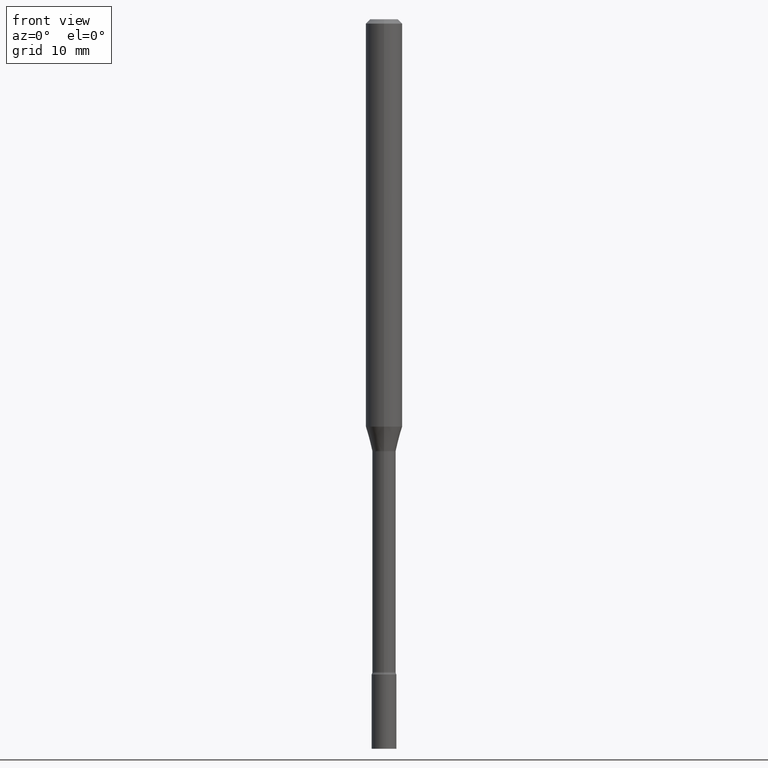
[diagram: clean part render]
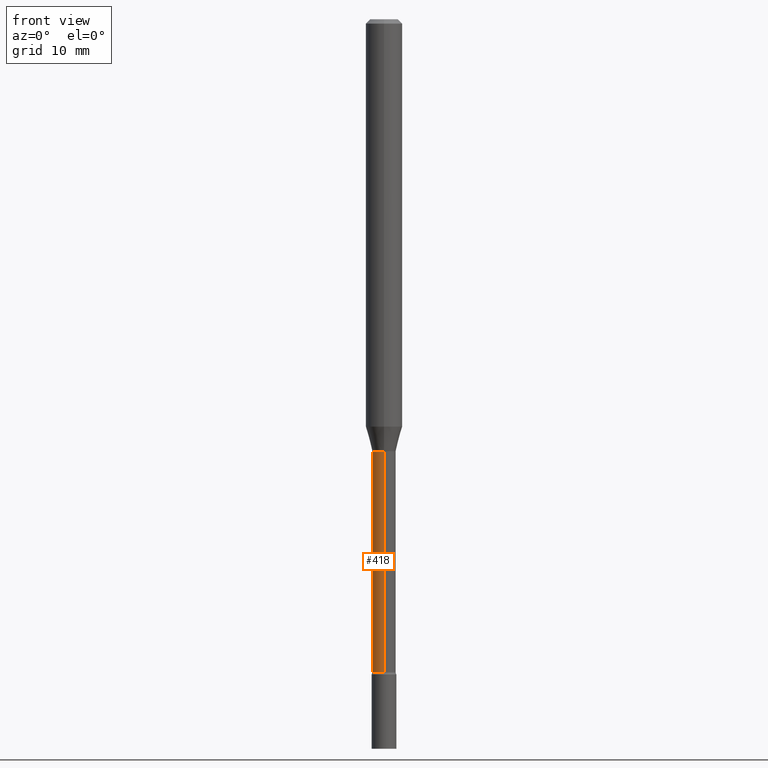
[diagram: same view with one face highlighted and labeled with its STEP entity id]
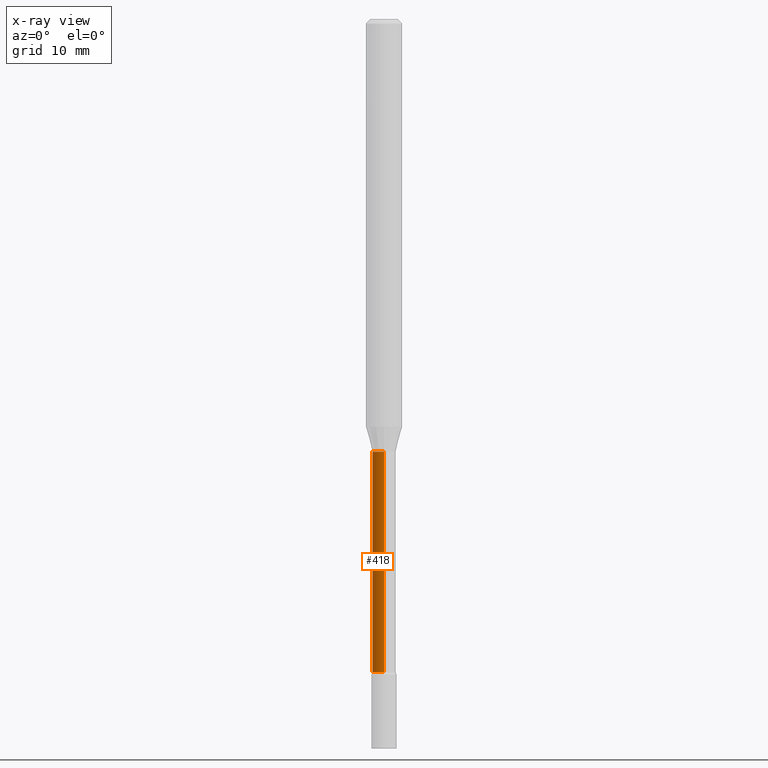
[diagram: x-ray of the same camera — body ghosted, the highlighted face saturated]
A machine part, front view. The second image highlights one B-rep face of the part: STEP entity #418.
The next image is the same camera in x-ray: the body ghosted, the highlighted face saturated — about 0% of this face is hidden behind the body in this view.
In plain terms, the highlighted cylindrical surface (edge-blend (fillet) strip) has radius 1.0147 mm, axis along (-0, 0, 1).
Its self-contained STEP definition (entity closure, byte-faithful):
#21 = DIRECTION ( 'NONE',  ( -6.982962677686266711E-15, -1.000000000000000000, 6.838167693777865983E-15 ) ) ;
#27 = CARTESIAN_POINT ( 'NONE',  ( 2.929212428171563580E-16, 0.03994999999999226947, -2.236633549139570132 ) ) ;
#46 = CARTESIAN_POINT ( 'NONE',  ( 2.838618229362148951E-16, 0.03994999999999483686, -1.481974787463811394 ) ) ;
#47 = VERTEX_POINT ( 'NONE', #27 ) ;
#56 = VECTOR ( 'NONE', #68, 39.37007874015748143 ) ;
#68 = DIRECTION ( 'NONE',  ( -2.445431924933629508E-29, 3.491534154894454552E-15, 1.000000000000000000 ) ) ;
#72 = CARTESIAN_POINT ( 'NONE',  ( -2.789693589735121927E-16, -0.03995000000000789586, -2.236633549139569688 ) ) ;
#76 = DIRECTION ( 'NONE',  ( -6.982962677686265133E-15, -1.000000000000000000, 6.838167693777879394E-15 ) ) ;
#82 = AXIS2_PLACEMENT_3D ( 'NONE', #111, #114, #197 ) ;
#96 = EDGE_CURVE ( 'NONE', #47, #172, #499, .T. ) ;
#106 = DIRECTION ( 'NONE',  ( -2.445431924933629508E-29, 3.491534154894454552E-15, 1.000000000000000000 ) ) ;
#111 = CARTESIAN_POINT ( 'NONE',  ( 0.000000000000000000, 0.000000000000000000, 0.000000000000000000 ) ) ;
#114 = DIRECTION ( 'NONE',  ( -2.445431924933629508E-29, 3.491534154894454158E-15, 1.000000000000000000 ) ) ;
#120 = LINE ( 'NONE', #352, #322 ) ;
#151 = AXIS2_PLACEMENT_3D ( 'NONE', #224, #339, #21 ) ;
#166 = EDGE_CURVE ( 'NONE', #506, #276, #431, .T. ) ;
#172 = VERTEX_POINT ( 'NONE', #72 ) ;
#175 = AXIS2_PLACEMENT_3D ( 'NONE', #345, #383, #76 ) ;
#187 = LINE ( 'NONE', #259, #56 ) ;
#189 = CARTESIAN_POINT ( 'NONE',  ( -2.789693589735301393E-16, -0.03995000000000518275, -1.481974787463810728 ) ) ;
#196 = ORIENTED_EDGE ( 'NONE', *, *, #166, .F. ) ;
#197 = DIRECTION ( 'NONE',  ( -6.982962677686265133E-15, -1.000000000000000000, 3.491534154894453763E-15 ) ) ;
#224 = CARTESIAN_POINT ( 'NONE',  ( 5.469535085443512815E-29, -7.809282428803610510E-15, -2.236633549139569688 ) ) ;
#230 = CYLINDRICAL_SURFACE ( 'NONE', #82, 0.03995000000000004103 ) ;
#238 = EDGE_CURVE ( 'NONE', #172, #276, #120, .T. ) ;
#259 = CARTESIAN_POINT ( 'NONE',  ( 2.838618229361602665E-16, 0.03995000000000004103, -1.394867894880335725E-16 ) ) ;
#276 = VERTEX_POINT ( 'NONE', #189 ) ;
#322 = VECTOR ( 'NONE', #106, 39.37007874015748143 ) ;
#339 = DIRECTION ( 'NONE',  ( -2.445431924933629508E-29, 3.491534154894454158E-15, 1.000000000000000000 ) ) ;
#345 = CARTESIAN_POINT ( 'NONE',  ( 3.624068457210734143E-29, -5.174365587122345573E-15, -1.481974787463811172 ) ) ;
#346 = EDGE_CURVE ( 'NONE', #47, #506, #187, .T. ) ;
#348 = ORIENTED_EDGE ( 'NONE', *, *, #238, .T. ) ;
#352 = CARTESIAN_POINT ( 'NONE',  ( -2.789693589735665748E-16, -0.03995000000000004103, 1.394867894880335725E-16 ) ) ;
#383 = DIRECTION ( 'NONE',  ( -2.445431924933629508E-29, 3.491534154894454158E-15, 1.000000000000000000 ) ) ;
#397 = FACE_OUTER_BOUND ( 'NONE', #477, .T. ) ;
#404 = ORIENTED_EDGE ( 'NONE', *, *, #96, .T. ) ;
#418 = ADVANCED_FACE ( 'NONE', ( #397 ), #230, .T. ) ;
#431 = CIRCLE ( 'NONE', #175, 0.03995000000000000634 ) ;
#471 = ORIENTED_EDGE ( 'NONE', *, *, #346, .F. ) ;
#477 = EDGE_LOOP ( 'NONE', ( #471, #404, #348, #196 ) ) ;
#499 = CIRCLE ( 'NONE', #151, 0.03995000000000008267 ) ;
#506 = VERTEX_POINT ( 'NONE', #46 ) ;